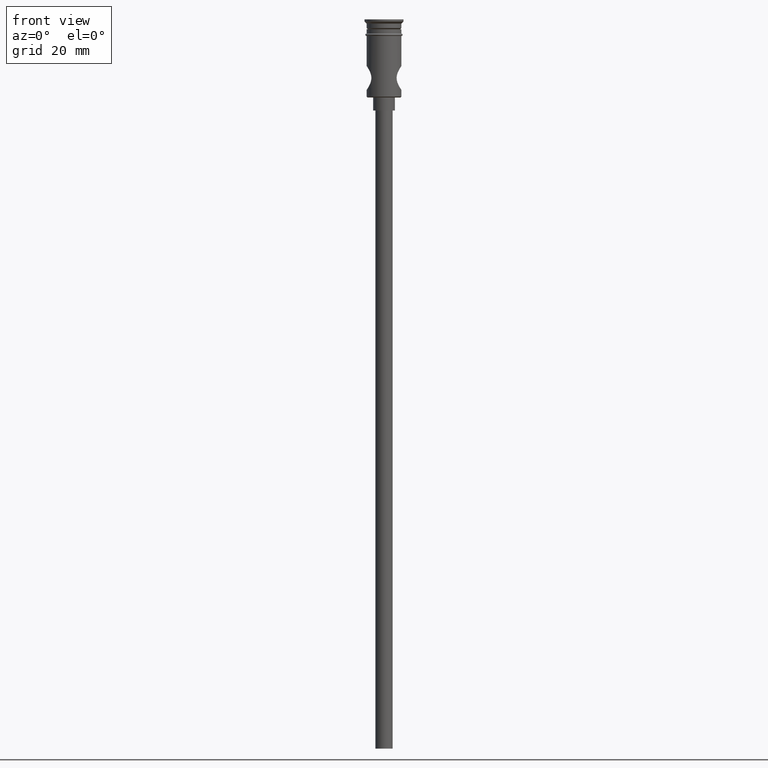
[diagram: clean part render]
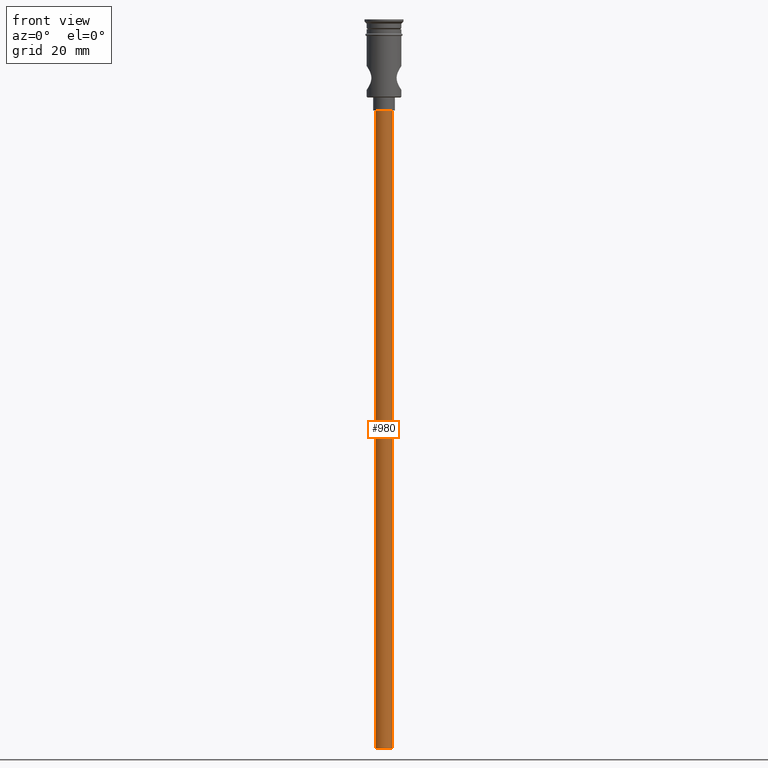
[diagram: same view with one face highlighted and labeled with its STEP entity id]
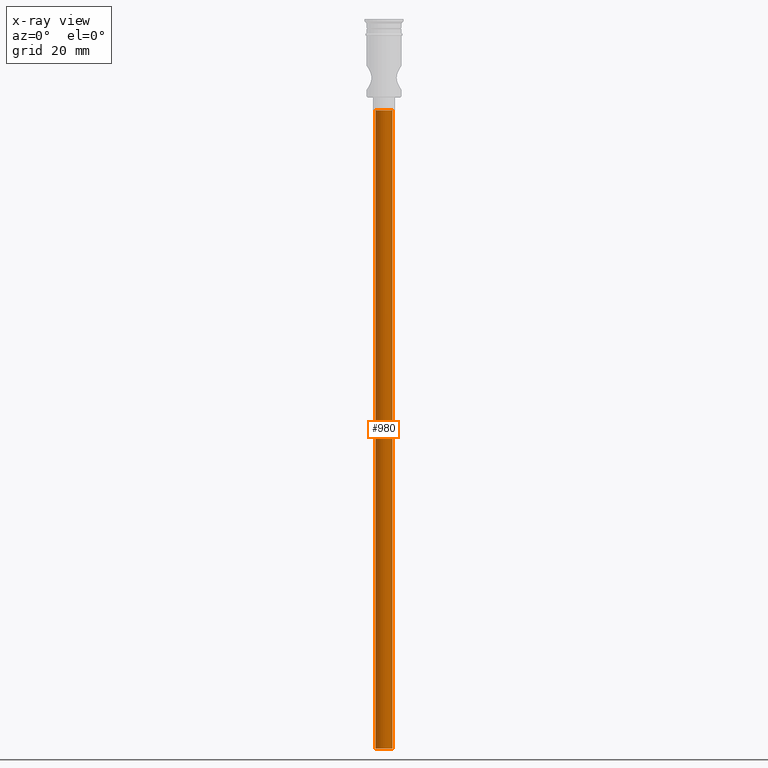
[diagram: x-ray of the same camera — body ghosted, the highlighted face saturated]
A machine part, front view. The second image highlights one B-rep face of the part: STEP entity #980.
The next image is the same camera in x-ray: the body ghosted, the highlighted face saturated — about 0% of this face is hidden behind the body in this view.
In plain terms, the highlighted cylindrical surface (edge-blend (fillet) strip) has radius 2 mm, axis along (-0, -0, 1).
Its self-contained STEP definition (entity closure, byte-faithful):
#4 = AXIS2_PLACEMENT_3D ( 'NONE', #152, #383, #944 ) ;
#20 = EDGE_CURVE ( 'NONE', #536, #399, #225, .T. ) ;
#63 = DIRECTION ( 'NONE',  ( 1.000000000000000000, 0.000000000000000000, 0.000000000000000000 ) ) ;
#152 = CARTESIAN_POINT ( 'NONE',  ( 0.000000000000000000, 0.000000000000000000, -167.9999999999999716 ) ) ;
#221 = VERTEX_POINT ( 'NONE', #1268 ) ;
#225 = LINE ( 'NONE', #1243, #504 ) ;
#250 = ORIENTED_EDGE ( 'NONE', *, *, #1009, .T. ) ;
#264 = CIRCLE ( 'NONE', #4, 2.000000000000000000 ) ;
#376 = EDGE_CURVE ( 'NONE', #221, #829, #751, .T. ) ;
#383 = DIRECTION ( 'NONE',  ( 0.000000000000000000, 0.000000000000000000, -1.000000000000000000 ) ) ;
#390 = DIRECTION ( 'NONE',  ( 0.000000000000000000, 0.000000000000000000, -1.000000000000000000 ) ) ;
#399 = VERTEX_POINT ( 'NONE', #1398 ) ;
#421 = VECTOR ( 'NONE', #973, 1000.000000000000000 ) ;
#503 = CARTESIAN_POINT ( 'NONE',  ( 0.000000000000000000, 0.000000000000000000, -20.99999999999999645 ) ) ;
#504 = VECTOR ( 'NONE', #1319, 1000.000000000000000 ) ;
#536 = VERTEX_POINT ( 'NONE', #543 ) ;
#543 = CARTESIAN_POINT ( 'NONE',  ( 2.000000000000000000, 0.000000000000000000, -167.9999999999999716 ) ) ;
#562 = ORIENTED_EDGE ( 'NONE', *, *, #1281, .F. ) ;
#604 = DIRECTION ( 'NONE',  ( -0.000000000000000000, -0.000000000000000000, 1.000000000000000000 ) ) ;
#659 = EDGE_LOOP ( 'NONE', ( #1323, #562, #853, #250 ) ) ;
#696 = CIRCLE ( 'NONE', #1165, 2.000000000000000000 ) ;
#730 = CARTESIAN_POINT ( 'NONE',  ( -2.000000000000000000, 2.449293598294706414E-16, -167.9999999999999716 ) ) ;
#751 = LINE ( 'NONE', #730, #421 ) ;
#810 = FACE_OUTER_BOUND ( 'NONE', #659, .T. ) ;
#829 = VERTEX_POINT ( 'NONE', #1225 ) ;
#830 = DIRECTION ( 'NONE',  ( -1.000000000000000000, 0.000000000000000000, 0.000000000000000000 ) ) ;
#853 = ORIENTED_EDGE ( 'NONE', *, *, #20, .T. ) ;
#944 = DIRECTION ( 'NONE',  ( -1.000000000000000000, 0.000000000000000000, 0.000000000000000000 ) ) ;
#972 = AXIS2_PLACEMENT_3D ( 'NONE', #1157, #604, #63 ) ;
#973 = DIRECTION ( 'NONE',  ( -0.000000000000000000, -0.000000000000000000, 1.000000000000000000 ) ) ;
#980 = ADVANCED_FACE ( 'NONE', ( #810 ), #1049, .T. ) ;
#1009 = EDGE_CURVE ( 'NONE', #399, #829, #696, .T. ) ;
#1049 = CYLINDRICAL_SURFACE ( 'NONE', #972, 2.000000000000000000 ) ;
#1157 = CARTESIAN_POINT ( 'NONE',  ( 0.000000000000000000, 0.000000000000000000, -167.9999999999999716 ) ) ;
#1165 = AXIS2_PLACEMENT_3D ( 'NONE', #503, #390, #830 ) ;
#1225 = CARTESIAN_POINT ( 'NONE',  ( -2.000000000000000000, 2.449293598294706414E-16, -20.99999999999999645 ) ) ;
#1243 = CARTESIAN_POINT ( 'NONE',  ( 2.000000000000000000, 0.000000000000000000, -167.9999999999999716 ) ) ;
#1268 = CARTESIAN_POINT ( 'NONE',  ( -2.000000000000000000, 2.449293598294706414E-16, -167.9999999999999716 ) ) ;
#1281 = EDGE_CURVE ( 'NONE', #536, #221, #264, .T. ) ;
#1319 = DIRECTION ( 'NONE',  ( -0.000000000000000000, -0.000000000000000000, 1.000000000000000000 ) ) ;
#1323 = ORIENTED_EDGE ( 'NONE', *, *, #376, .F. ) ;
#1398 = CARTESIAN_POINT ( 'NONE',  ( 2.000000000000000000, 0.000000000000000000, -20.99999999999999645 ) ) ;